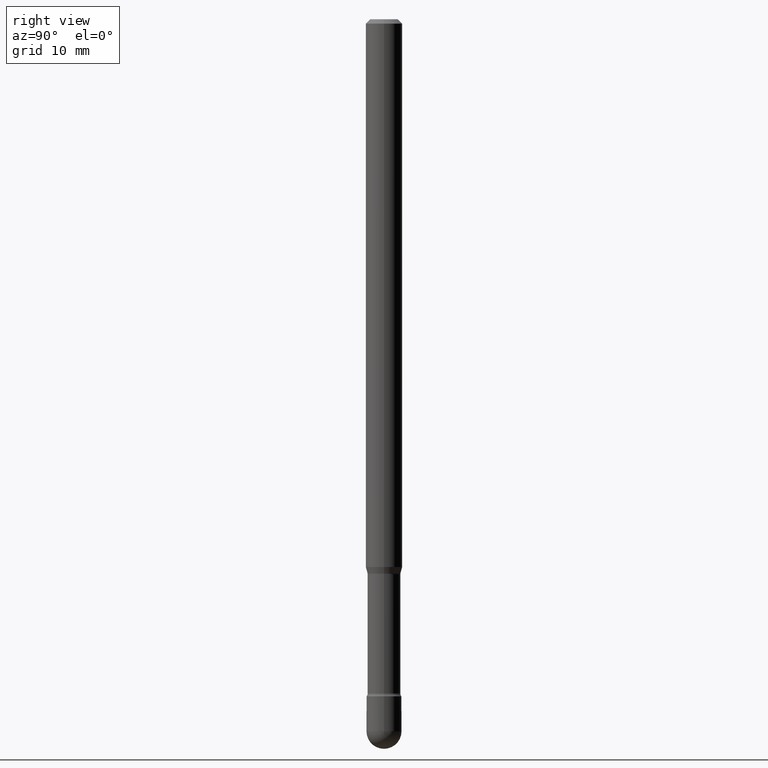
[diagram: clean part render]
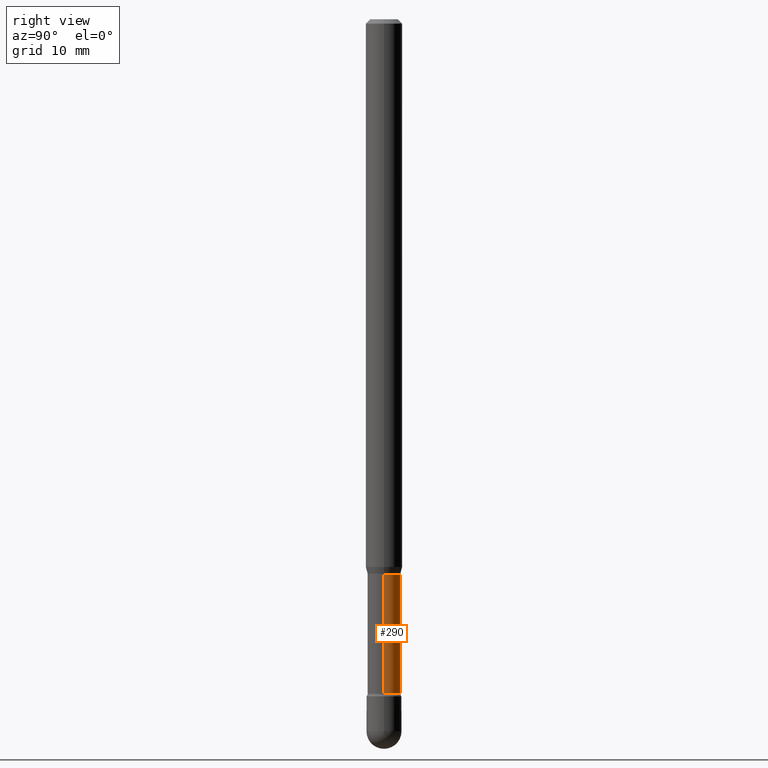
[diagram: same view with one face highlighted and labeled with its STEP entity id]
A machine part, right view. The second image highlights one B-rep face of the part: STEP entity #290.
In plain terms, the highlighted cylindrical surface (edge-blend (fillet) strip) has radius 1.4326 mm, axis along (-0, 0, 1).
Its self-contained STEP definition (entity closure, byte-faithful):
#14 = DIRECTION ( 'NONE',  ( -2.445468806185136877E-29, 3.491481338843145188E-15, 1.000000000000000000 ) ) ;
#15 = VERTEX_POINT ( 'NONE', #137 ) ;
#31 = VERTEX_POINT ( 'NONE', #255 ) ;
#51 = CARTESIAN_POINT ( 'NONE',  ( 0.05640000000000000568, -3.938390950215037776E-16, 4.780733988912487749E-16 ) ) ;
#52 = CARTESIAN_POINT ( 'NONE',  ( 5.649647131350973229E-29, -8.066198791933100712E-15, -2.310251153914436806 ) ) ;
#62 = CARTESIAN_POINT ( 'NONE',  ( -1.169113584055446105E-44, 1.669184350826100908E-30, 4.780733988912460139E-16 ) ) ;
#67 = CIRCLE ( 'NONE', #265, 0.05640000000000001262 ) ;
#70 = VERTEX_POINT ( 'NONE', #474 ) ;
#88 = EDGE_CURVE ( 'NONE', #70, #31, #204, .T. ) ;
#100 = ORIENTED_EDGE ( 'NONE', *, *, #527, .T. ) ;
#126 = FACE_OUTER_BOUND ( 'NONE', #561, .T. ) ;
#137 = CARTESIAN_POINT ( 'NONE',  ( -0.05639999999999999181, -6.952708031687881193E-15, -1.901974787463811323 ) ) ;
#154 = ORIENTED_EDGE ( 'NONE', *, *, #406, .T. ) ;
#171 = LINE ( 'NONE', #347, #334 ) ;
#204 = LINE ( 'NONE', #51, #384 ) ;
#214 = DIRECTION ( 'NONE',  ( -2.445468806185136597E-29, 3.491481338843145583E-15, 1.000000000000000000 ) ) ;
#246 = AXIS2_PLACEMENT_3D ( 'NONE', #529, #214, #515 ) ;
#251 = DIRECTION ( 'NONE',  ( 1.000000000000000000, -6.982962677686259611E-15, 0.000000000000000000 ) ) ;
#255 = CARTESIAN_POINT ( 'NONE',  ( 0.05639999999999999181, -7.034548572401560169E-15, -1.901974787463811323 ) ) ;
#265 = AXIS2_PLACEMENT_3D ( 'NONE', #52, #397, #251 ) ;
#273 = EDGE_CURVE ( 'NONE', #31, #15, #310, .T. ) ;
#290 = ADVANCED_FACE ( 'NONE', ( #126 ), #378, .T. ) ;
#310 = CIRCLE ( 'NONE', #246, 0.05639999999999999181 ) ;
#322 = ORIENTED_EDGE ( 'NONE', *, *, #88, .F. ) ;
#331 = ORIENTED_EDGE ( 'NONE', *, *, #273, .F. ) ;
#334 = VECTOR ( 'NONE', #14, 39.37007874015748143 ) ;
#344 = CARTESIAN_POINT ( 'NONE',  ( -0.05640000000000001262, -7.669681876812221834E-15, -2.310251153914436806 ) ) ;
#347 = CARTESIAN_POINT ( 'NONE',  ( -0.05640000000000000568, 4.007461029686982216E-16, 4.780733988912432529E-16 ) ) ;
#378 = CYLINDRICAL_SURFACE ( 'NONE', #391, 0.05640000000000000568 ) ;
#384 = VECTOR ( 'NONE', #386, 39.37007874015748143 ) ;
#386 = DIRECTION ( 'NONE',  ( -2.445468806185136877E-29, 3.491481338843145188E-15, 1.000000000000000000 ) ) ;
#391 = AXIS2_PLACEMENT_3D ( 'NONE', #62, #393, #562 ) ;
#393 = DIRECTION ( 'NONE',  ( -2.445468806185136597E-29, 3.491481338843145583E-15, 1.000000000000000000 ) ) ;
#397 = DIRECTION ( 'NONE',  ( -2.445468806185136597E-29, 3.491481338843145583E-15, 1.000000000000000000 ) ) ;
#406 = EDGE_CURVE ( 'NONE', #70, #420, #67, .T. ) ;
#420 = VERTEX_POINT ( 'NONE', #344 ) ;
#474 = CARTESIAN_POINT ( 'NONE',  ( 0.05640000000000001262, -8.460037886954606117E-15, -2.310251153914436806 ) ) ;
#515 = DIRECTION ( 'NONE',  ( 1.000000000000000000, -6.982962677686261977E-15, 0.000000000000000000 ) ) ;
#527 = EDGE_CURVE ( 'NONE', #420, #15, #171, .T. ) ;
#529 = CARTESIAN_POINT ( 'NONE',  ( 4.651220012893355916E-29, -6.640709477380055554E-15, -1.901974787463811323 ) ) ;
#561 = EDGE_LOOP ( 'NONE', ( #154, #100, #331, #322 ) ) ;
#562 = DIRECTION ( 'NONE',  ( 1.000000000000000000, -6.982962677686265922E-15, 4.839830652673569521E-29 ) ) ;